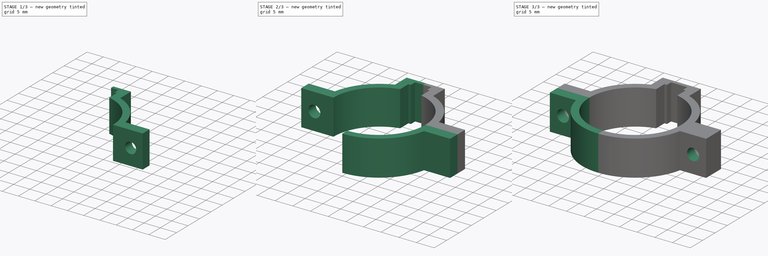
[diagram: build sequence overview — one tinted view per stage of 3, left to right]
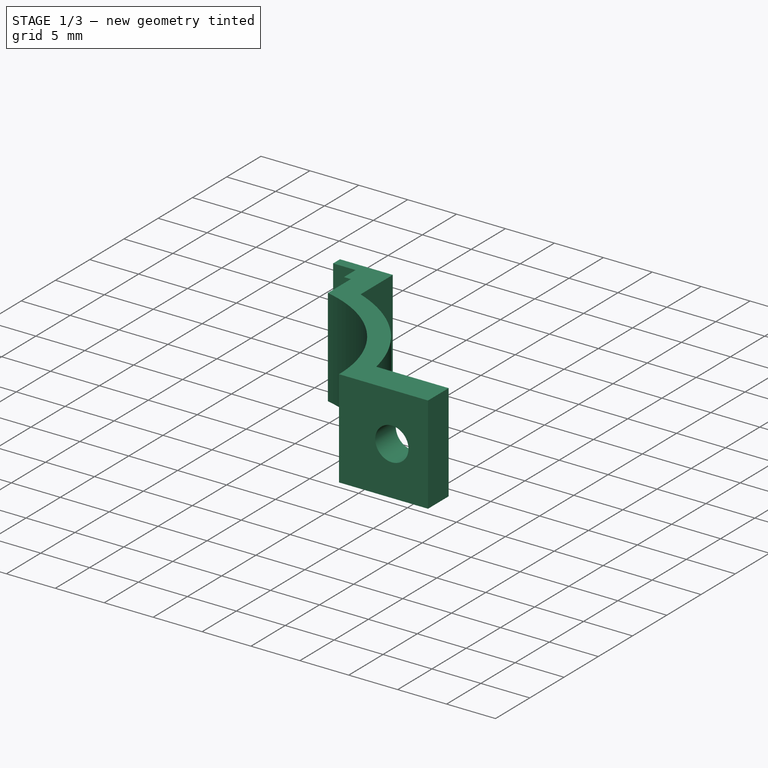
[diagram: stage 1 of 3 — iso view after this stage's code; geometry added in this stage tinted green]
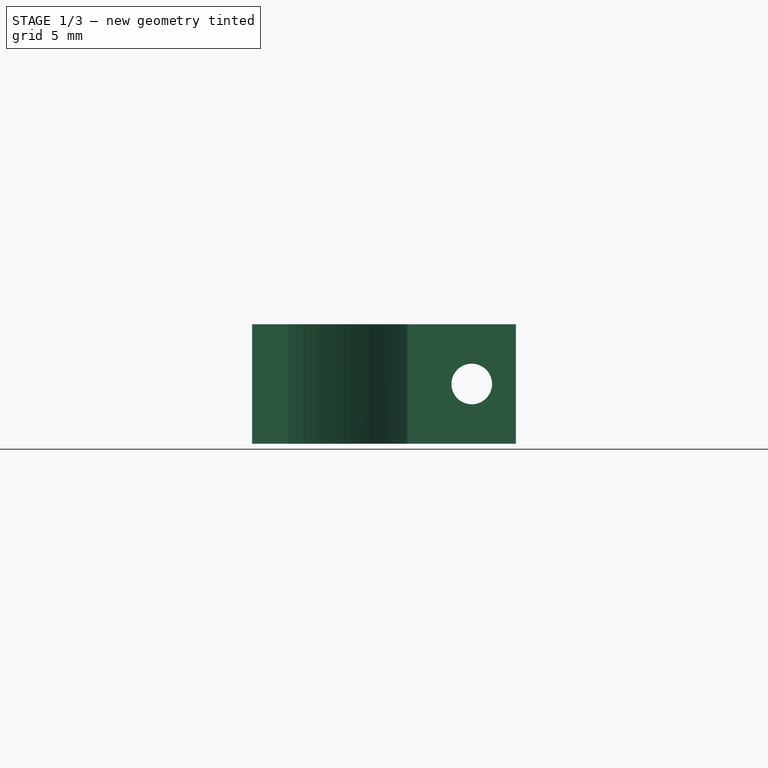
[diagram: stage 1 of 3 — front view after this stage's code; geometry added in this stage tinted green]
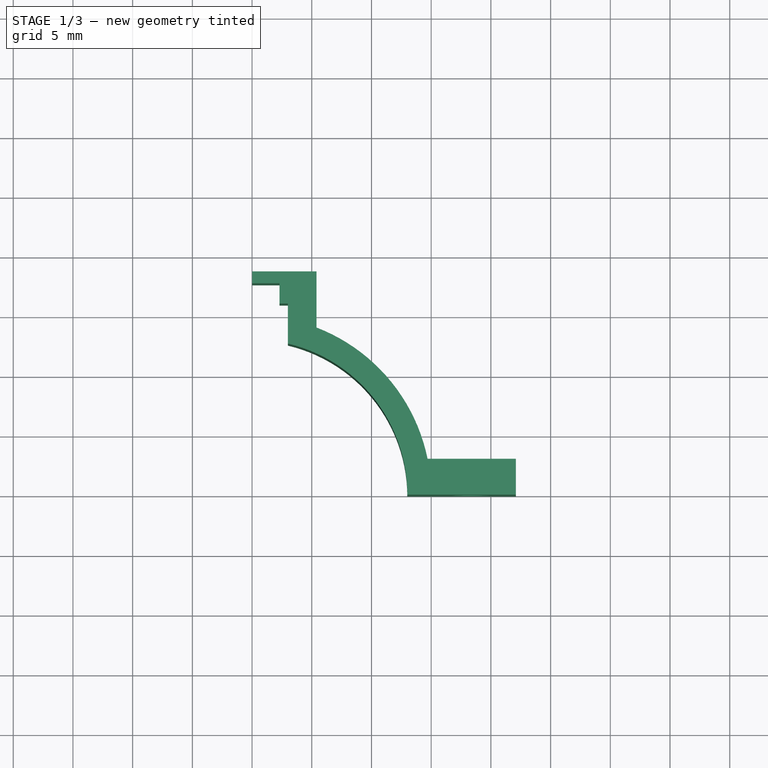
[diagram: stage 1 of 3 — top view after this stage's code; geometry added in this stage tinted green]
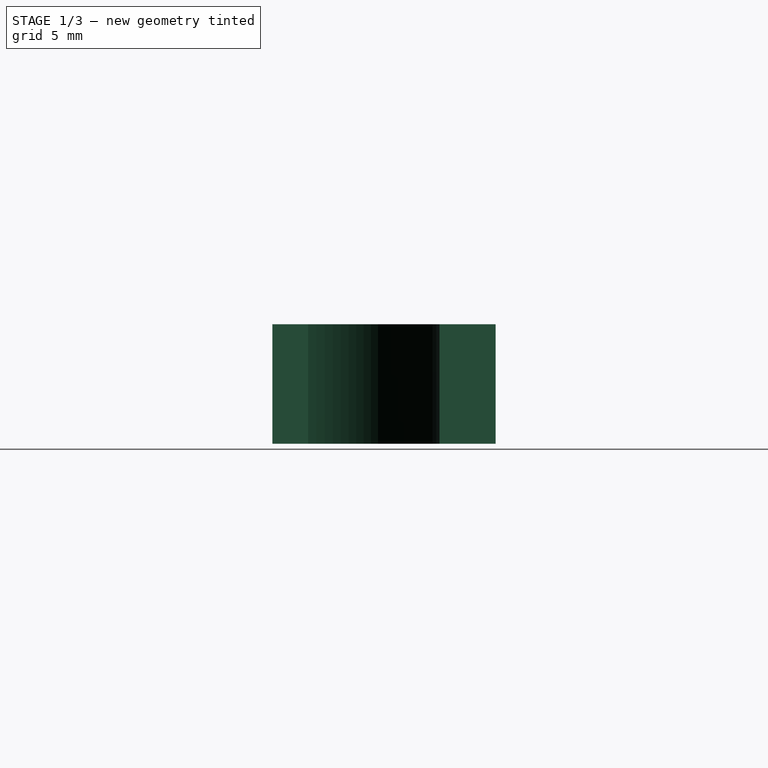
[diagram: stage 1 of 3 — right view after this stage's code; geometry added in this stage tinted green]
FCSTD DOCUMENT  (FreeCAD 0.19R24291 (Git))
Label: Хомут
License: All rights reserved
LicenseURL: http://en.wikipedia.org/wiki/All_rights_reserved
objects: Sketcher::SketchObject×4, PartDesign::Pad×2, PartDesign::Pocket×2, PartDesign::Mirrored×2, PartDesign::Body×2
note: 16 computed .brp shape members not serialized (recipe doc carries the construction recipe); baked Part::Feature solids carry a one-line shape summary decoded from their .brp

FEATURE [Sketcher::SketchObject] Sketch
  FullyConstrained = true
  MapMode = 5
  Support = -> [XY_Plane]
  sketch-geometry (15):
    g0: ArcOfCircle CenterX=0 CenterY=0 CenterZ=0 NormalX=0 NormalY=0 NormalZ=1 AngleXU=0 Radius=13 StartAngle=0 EndAngle=1.33793
    g1: LineSegment StartX=13 StartY=0 StartZ=0 EndX=22.0969 EndY=0 EndZ=0
    g2: LineSegment StartX=22.0969 StartY=0 StartZ=0 EndX=22.0969 EndY=3 EndZ=0
    g3: ArcOfCircle CenterX=0 CenterY=0 CenterZ=0 NormalX=0 NormalY=0 NormalZ=1 AngleXU=0 Radius=15 StartAngle=0.201358 EndAngle=1.20253
    g4: LineSegment StartX=22.0969 StartY=3 StartZ=0 EndX=14.6969 EndY=3 EndZ=0
    g5: LineSegment StartX=3 StartY=13 StartZ=0 EndX=3 EndY=16 EndZ=0
    g6: LineSegment StartX=3 StartY=16 StartZ=0 EndX=2.3 EndY=16 EndZ=0
    g7: LineSegment StartX=2.3 StartY=16 StartZ=0 EndX=2.3 EndY=17.7 EndZ=0
    g8: LineSegment StartX=2.3 StartY=17.7 StartZ=0 EndX=0 EndY=17.7 EndZ=0
    g9: LineSegment StartX=0 StartY=17.7 StartZ=0 EndX=0 EndY=18.7 EndZ=0
    g10: LineSegment StartX=0 StartY=18.7 StartZ=0 EndX=5.4 EndY=18.7 EndZ=0
    g11: LineSegment StartX=5.4 StartY=18.7 StartZ=0 EndX=5.4 EndY=13.9943 EndZ=0
    g12: ArcOfCircle CenterX=0 CenterY=0 CenterZ=0 NormalX=0 NormalY=0 NormalZ=1 AngleXU=0 Radius=13 StartAngle=1.33793 EndAngle=1.5708
    g13: LineSegment StartX=8e-16 StartY=13 StartZ=0 EndX=3 EndY=13 EndZ=0
    g14: LineSegment StartX=3 StartY=12.6491 StartZ=0 EndX=3 EndY=13 EndZ=0
  constraints (44):
    c: Coincident(g0,g-1)
    c: PointOnObject(g0,g-1)
    c: Diameter(g0) = 26
    c: Coincident(g1,g0)
    c: PointOnObject(g1,g-1)
    c: Coincident(g2,g1)
    c: Vertical(g2)
    c: Coincident(g3,g0)
    c: Coincident(g4,g2)
    c: Horizontal(g4)
    c: Coincident(g3,g4)
    c: Distance(g2) = 3
    c: Distance(g4) = 7.4
    c: Vertical(g5)
    c: Coincident(g6,g5)
    c: Horizontal(g6)
    c: Coincident(g7,g6)
    c: Vertical(g7)
    c: Coincident(g8,g7)
    c: PointOnObject(g8,g-2)
    c: Horizontal(g8)
    c: Coincident(g9,g8)
    c: PointOnObject(g9,g-2)
    c: Coincident(g10,g9)
    c: Horizontal(g10)
    c: Coincident(g11,g10)
    c: Vertical(g11)
    c: Coincident(g3,g11)
    c: Diameter(g3) = 30
    c: Distance(g9) = 1
    c: Distance(g5,g11) = 2.4
    c: Distance(g5) = 3
    c: Distance(g6) = 0.7
    c: Distance(g7) = 1.7
    c: Coincident(g12,g0)
    c: Coincident(g12,g0)
    c: PointOnObject(g12,g-2)
    c: Coincident(g13,g12)
    c: Horizontal(g13)
    c: Coincident(g13,g5)
    c: Coincident(g14,g0)
    c: Coincident(g14,g5)
    c: Vertical(g14)
    c: Distance(g8) = 2.3
FEATURE [PartDesign::Pad] Pad
  Direction = (1,1,1)
  Length = 10
  Length2 = 100
  Profile = -> Sketch
  Type = 0
FEATURE [Sketcher::SketchObject] Sketch001
  ExternalGeometry = -> [Pad]
  FullyConstrained = true
  MapMode = 5
  Placement = pos=(0,3,0) rot=(0,0.707107,0.707107;3.14159rad)
  Support = -> [Pad]
  sketch-geometry (5):
    g0: Circle CenterX=-18.3969 CenterY=5 CenterZ=0 NormalX=0 NormalY=0 NormalZ=1 AngleXU=0 Radius=1.7
    g1: LineSegment StartX=-18.3969 StartY=5 StartZ=0 EndX=-22.0969 EndY=5 EndZ=0
    g2: LineSegment StartX=-18.3969 StartY=5 StartZ=0 EndX=-14.6969 EndY=5 EndZ=0
    g3: LineSegment StartX=-18.3969 StartY=5 StartZ=0 EndX=-18.3969 EndY=10 EndZ=0
    g4: LineSegment StartX=-18.3969 StartY=5 StartZ=0 EndX=-18.3969 EndY=0 EndZ=0
  constraints (15):
    c: Coincident(g1,g0)
    c: PointOnObject(g1,g-4)
    c: Horizontal(g1)
    c: Coincident(g2,g0)
    c: PointOnObject(g2,g-3)
    c: Horizontal(g2)
    c: Equal(g2,g1)
    c: Diameter(g0) = 3.4
    c: Coincident(g3,g0)
    c: PointOnObject(g3,g-5)
    c: Vertical(g3)
    c: Coincident(g4,g0)
    c: PointOnObject(g4,g-1)
    c: Vertical(g4)
    c: Equal(g4,g3)
FEATURE [PartDesign::Pocket] Pocket
  BaseFeature = -> Pad
  Length = 5
  Length2 = 100
  Profile = -> Sketch001
  Type = 0
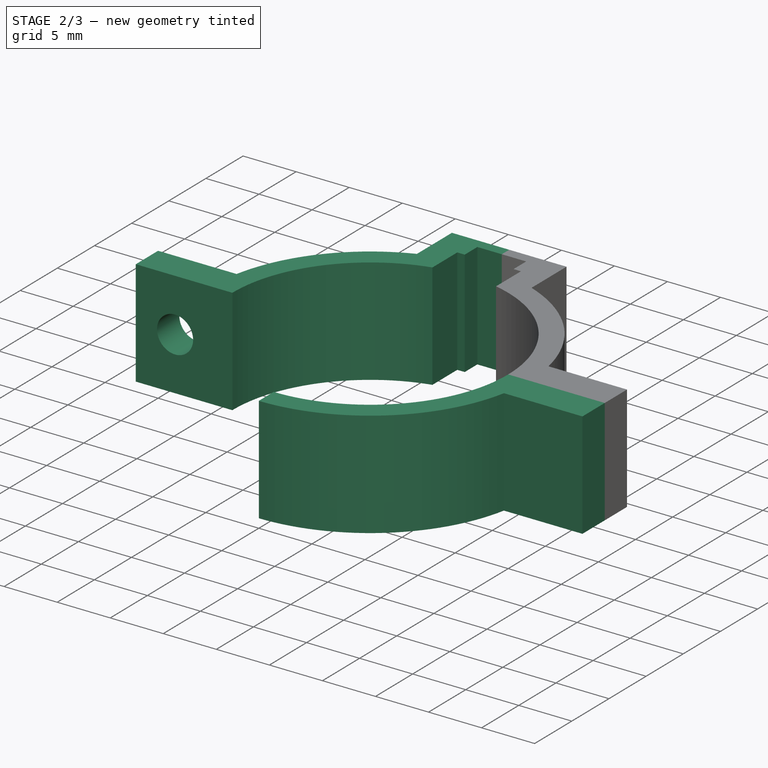
[diagram: stage 2 of 3 — iso view after this stage's code; geometry added in this stage tinted green]
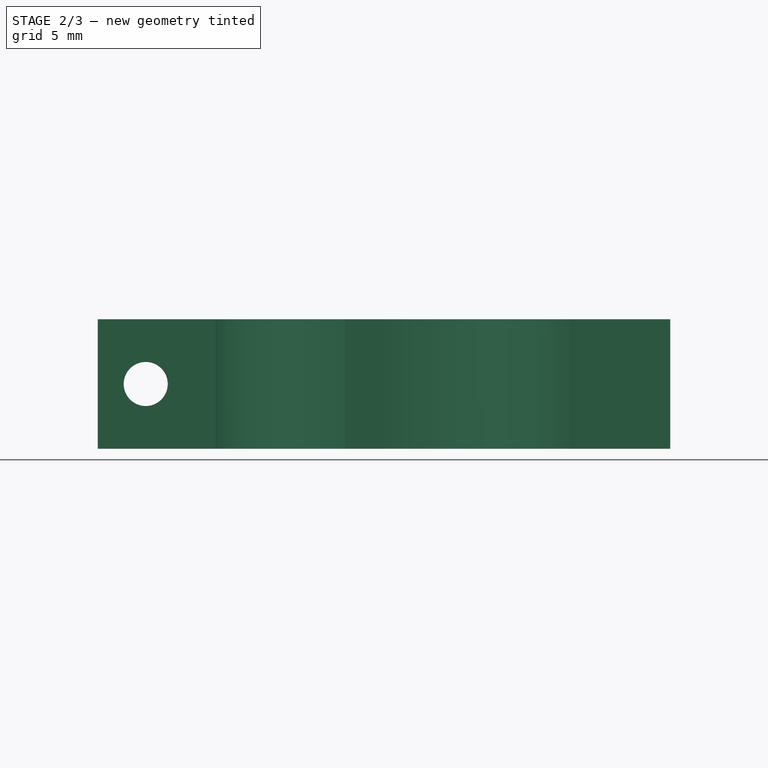
[diagram: stage 2 of 3 — front view after this stage's code; geometry added in this stage tinted green]
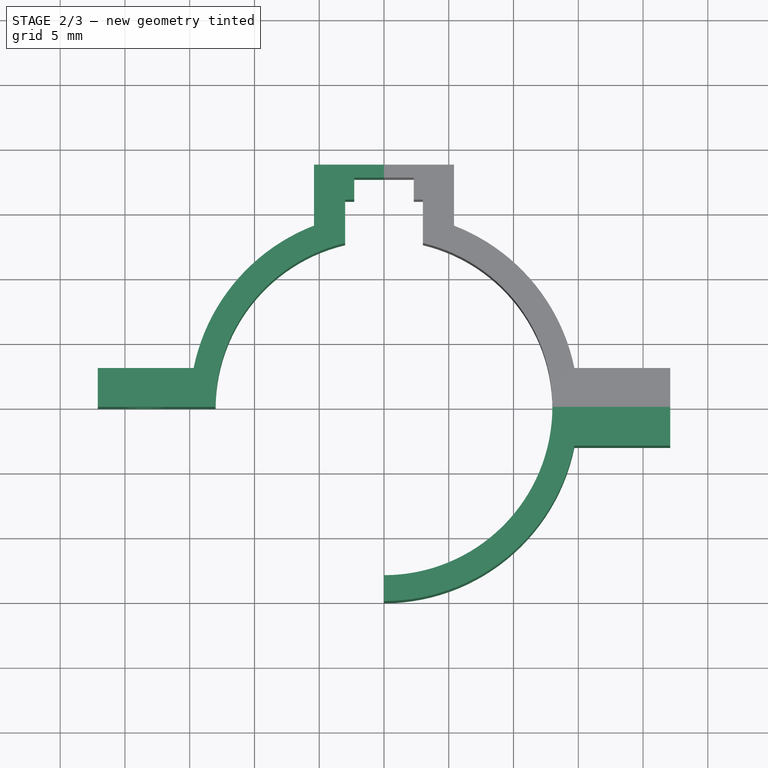
[diagram: stage 2 of 3 — top view after this stage's code; geometry added in this stage tinted green]
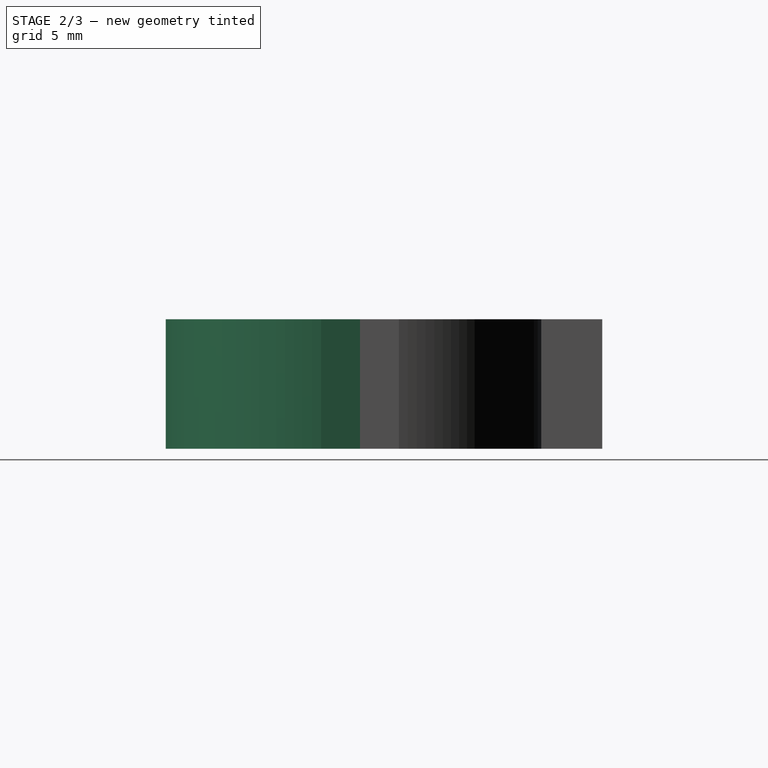
[diagram: stage 2 of 3 — right view after this stage's code; geometry added in this stage tinted green]
FEATURE [Sketcher::SketchObject] Sketch002
  FullyConstrained = true
  MapMode = 5
  Support = -> [XY_Plane001]
  sketch-geometry (6):
    g0: ArcOfCircle CenterX=0 CenterY=0 CenterZ=0 NormalX=0 NormalY=0 NormalZ=1 AngleXU=0 Radius=13 StartAngle=4.71239 EndAngle=6.28319
    g1: LineSegment StartX=13 StartY=-3.2e-15 StartZ=0 EndX=22.0969 EndY=0 EndZ=0
    g2: LineSegment StartX=22.0969 StartY=0 StartZ=0 EndX=22.0969 EndY=-3 EndZ=0
    g3: LineSegment StartX=22.0969 StartY=-3 StartZ=0 EndX=14.6969 EndY=-3 EndZ=0
    g4: LineSegment StartX=-2.4e-15 StartY=-13 StartZ=0 EndX=-2.8e-15 EndY=-15 EndZ=0
    g5: ArcOfCircle CenterX=0 CenterY=0 CenterZ=0 NormalX=0 NormalY=0 NormalZ=1 AngleXU=0 Radius=15 StartAngle=4.71239 EndAngle=6.08183
  constraints (18):
    c: Coincident(g0,g-1)
    c: PointOnObject(g0,g-1)
    c: PointOnObject(g0,g-2)
    c: Diameter(g0) = 26
    c: PointOnObject(g1,g-1)
    c: Coincident(g0,g1)
    c: Coincident(g2,g1)
    c: Vertical(g2)
    c: Coincident(g3,g2)
    c: Horizontal(g3)
    c: Coincident(g4,g0)
    c: PointOnObject(g4,g-2)
    c: Coincident(g5,g0)
    c: Coincident(g5,g4)
    c: Coincident(g5,g3)
    c: Distance(g2) = 3
    c: Distance(g4) = 2
    c: Distance(g3) = 7.4
FEATURE [PartDesign::Pad] Pad001
  Direction = (1,1,1)
  Length = 10
  Length2 = 100
  Profile = -> Sketch002
  Type = 0
FEATURE [PartDesign::Body] Body001
  Group = -> [Sketch002,Pad001,Sketch003,Pocket001,Mirrored]
  Origin = -> Origin001
  Tip = -> Mirrored
FEATURE [PartDesign::Mirrored] Mirrored001
  BaseFeature = -> Pocket
  MirrorPlane = -> Sketch [V_Axis]
  Originals = -> [Pad,Pocket]
FEATURE [PartDesign::Body] Body
  Group = -> [Sketch,Pad,Sketch001,Pocket,Mirrored001]
  Origin = -> Origin
  Tip = -> Mirrored001
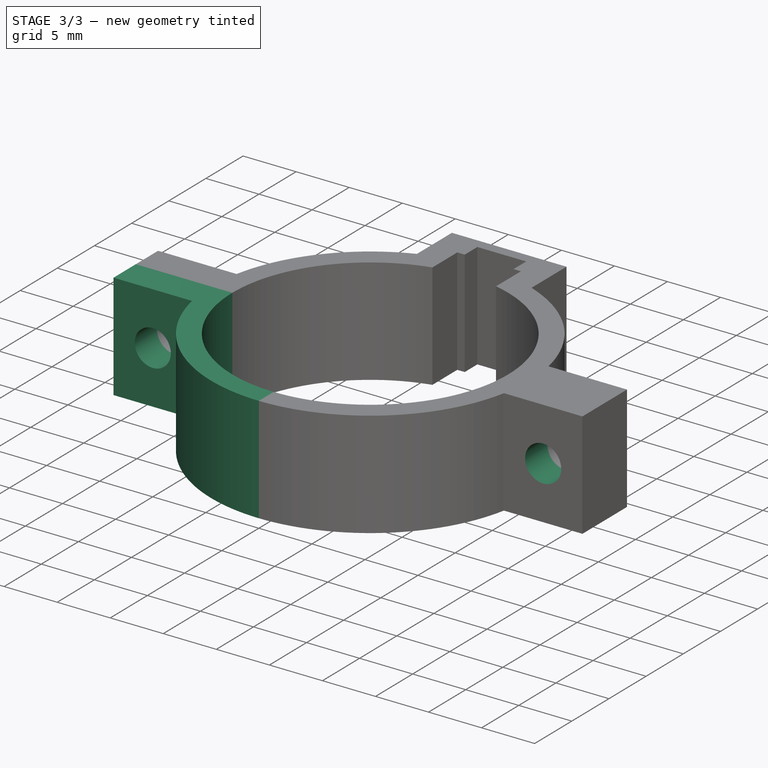
[diagram: stage 3 of 3 — iso view after this stage's code; geometry added in this stage tinted green]
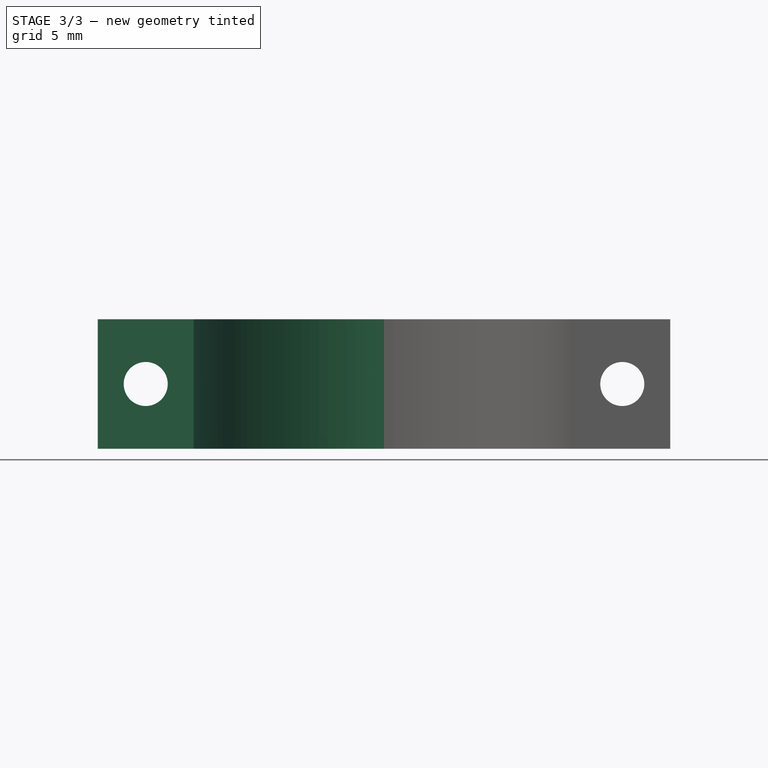
[diagram: stage 3 of 3 — front view after this stage's code; geometry added in this stage tinted green]
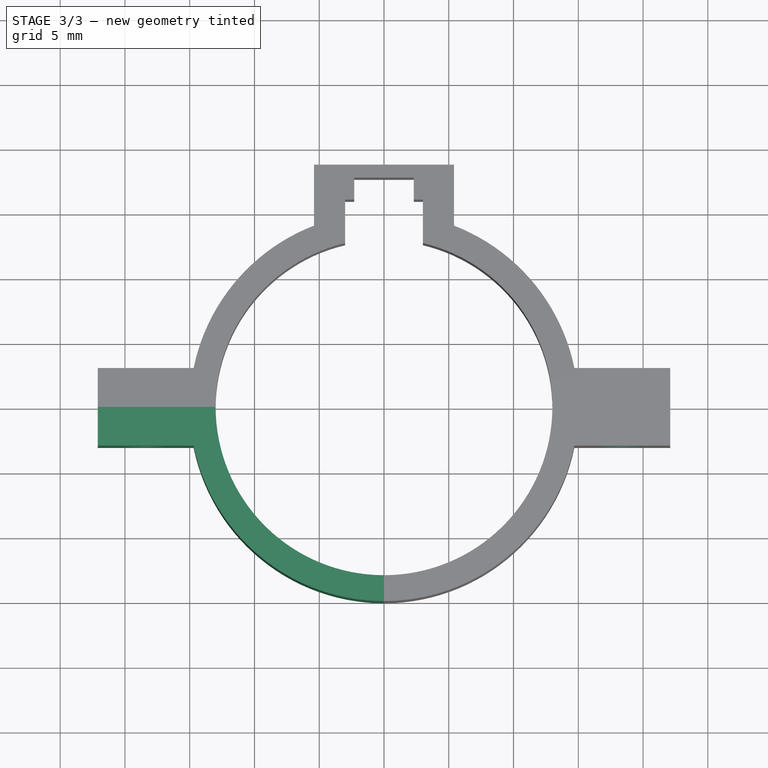
[diagram: stage 3 of 3 — top view after this stage's code; geometry added in this stage tinted green]
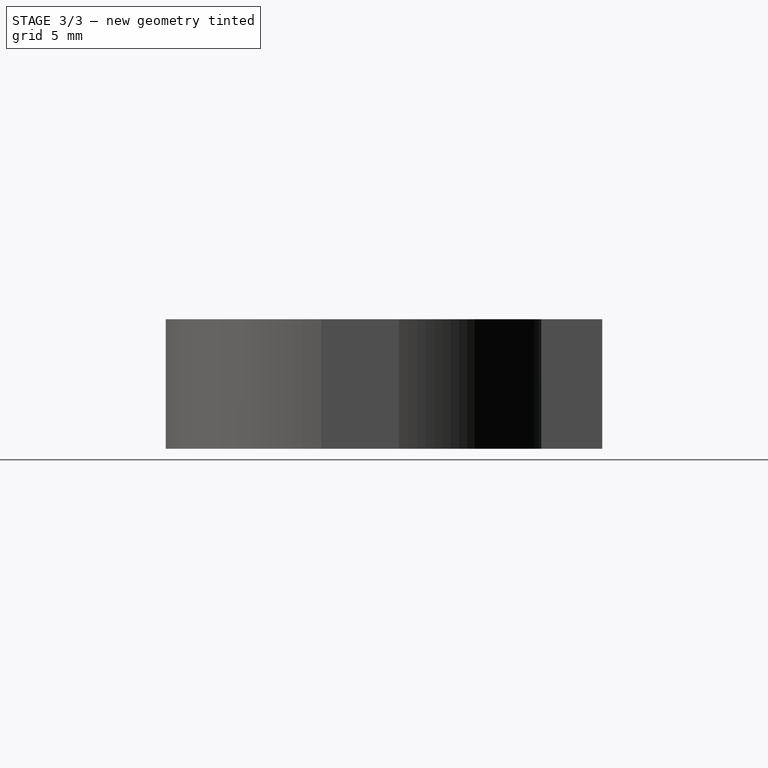
[diagram: stage 3 of 3 — right view after this stage's code; geometry added in this stage tinted green]
FEATURE [Sketcher::SketchObject] Sketch003
  ExternalGeometry = -> [Pad001]
  FullyConstrained = true
  MapMode = 5
  Placement = pos=(0,-3,0) rot=(1,0,0;1.5708rad)
  Support = -> [Pad001]
  sketch-geometry (5):
    g0: Circle CenterX=18.3969 CenterY=5 CenterZ=0 NormalX=0 NormalY=0 NormalZ=1 AngleXU=0 Radius=1.7
    g1: LineSegment StartX=14.6969 StartY=5 StartZ=0 EndX=18.3969 EndY=5 EndZ=0
    g2: LineSegment StartX=18.3969 StartY=5 StartZ=0 EndX=22.0969 EndY=5 EndZ=0
    g3: LineSegment StartX=18.3969 StartY=10 StartZ=0 EndX=18.3969 EndY=5 EndZ=0
    g4: LineSegment StartX=18.3969 StartY=5 StartZ=0 EndX=18.3969 EndY=0 EndZ=0
  constraints (15):
    c: Diameter(g0) = 3.4
    c: PointOnObject(g1,g-3)
    c: Coincident(g1,g0)
    c: Horizontal(g1)
    c: Coincident(g2,g0)
    c: PointOnObject(g2,g-4)
    c: Horizontal(g2)
    c: Equal(g1,g2)
    c: Coincident(g3,g0)
    c: Vertical(g3)
    c: Coincident(g4,g0)
    c: PointOnObject(g4,g-1)
    c: Vertical(g4)
    c: Horizontal(g-4,g3)
    c: Equal(g4,g3)
FEATURE [PartDesign::Pocket] Pocket001
  BaseFeature = -> Pad001
  Length = 5
  Length2 = 100
  Profile = -> Sketch003
  Type = 0
FEATURE [PartDesign::Mirrored] Mirrored
  BaseFeature = -> Pocket001
  MirrorPlane = -> Sketch002 [V_Axis]
  Originals = -> [Pad001,Pocket001]
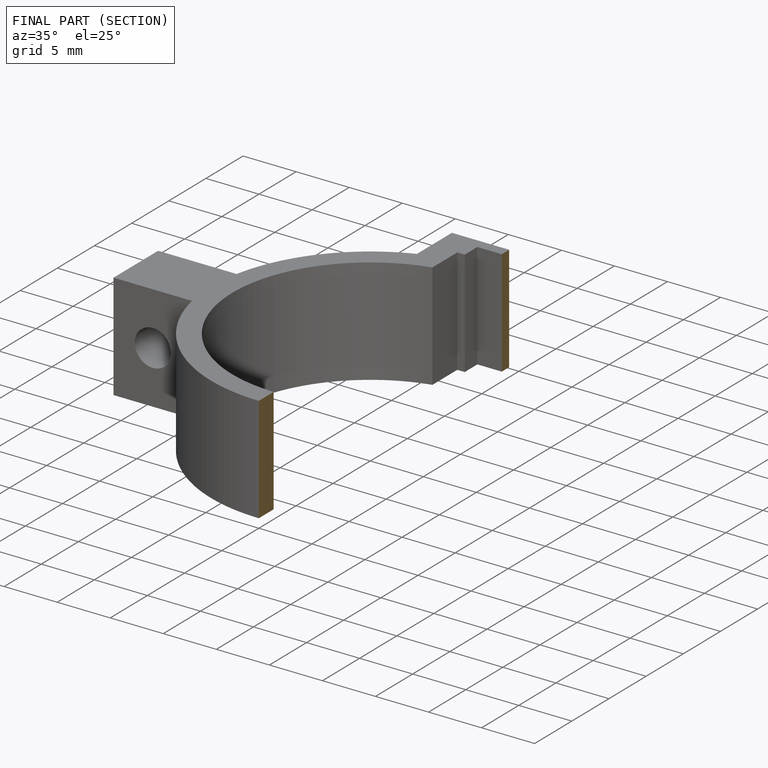
[diagram: finished part — half-section view (interior)]
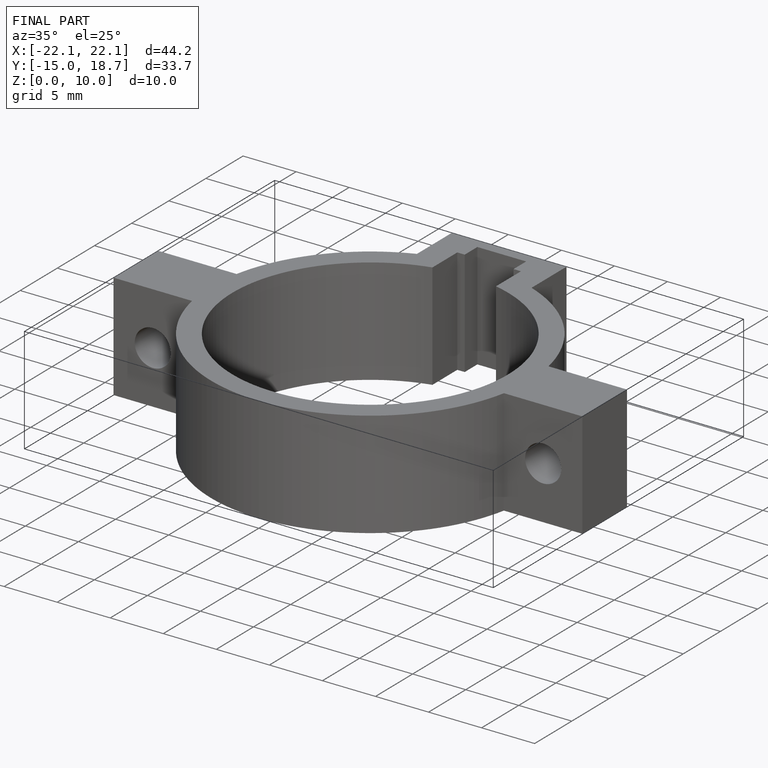
[diagram: finished part — iso view with bounding-box wireframe]
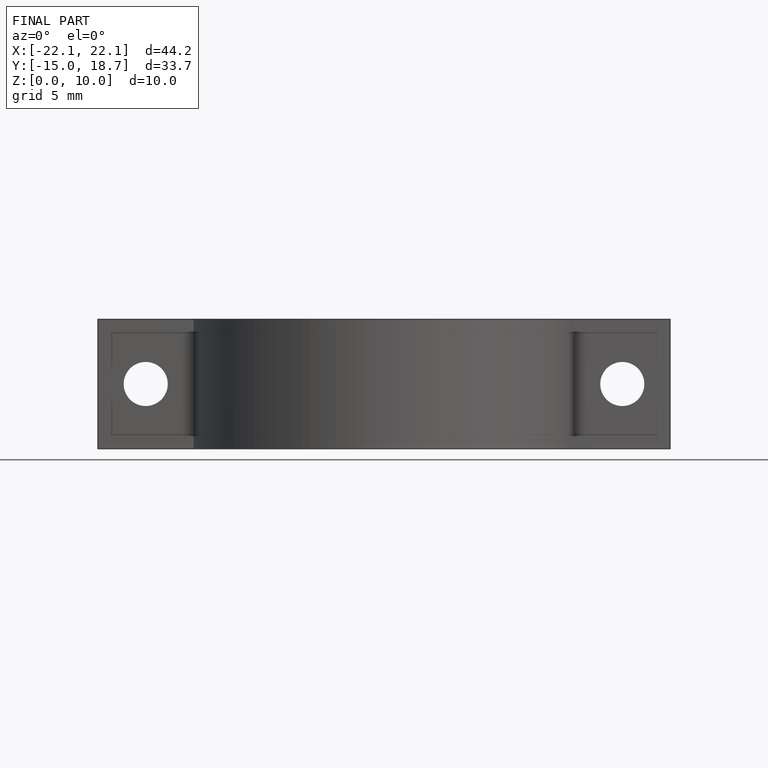
[diagram: finished part — front view with bounding-box wireframe]
